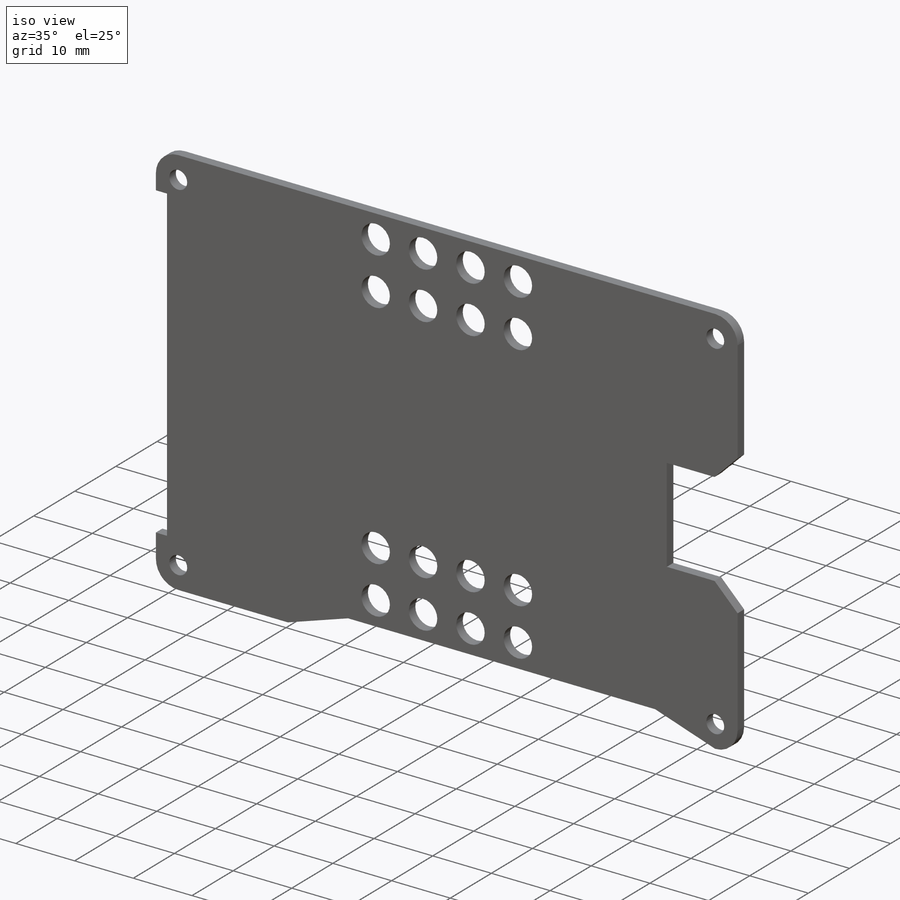
[diagram: iso view]
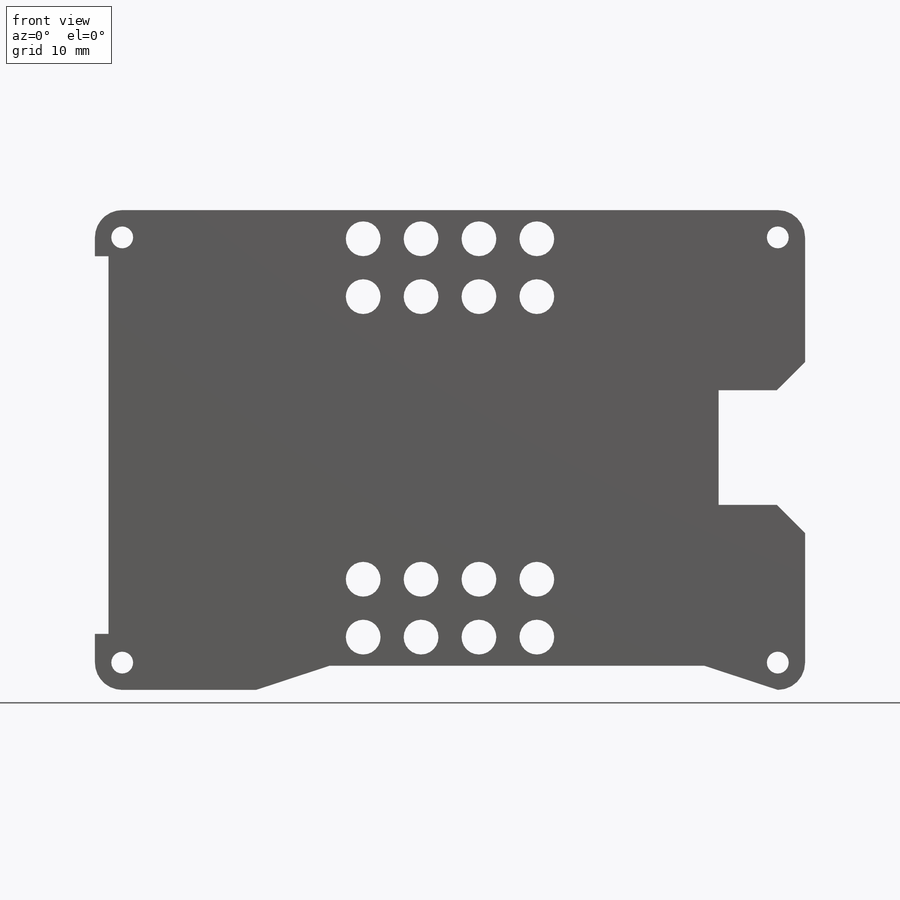
[diagram: front view]
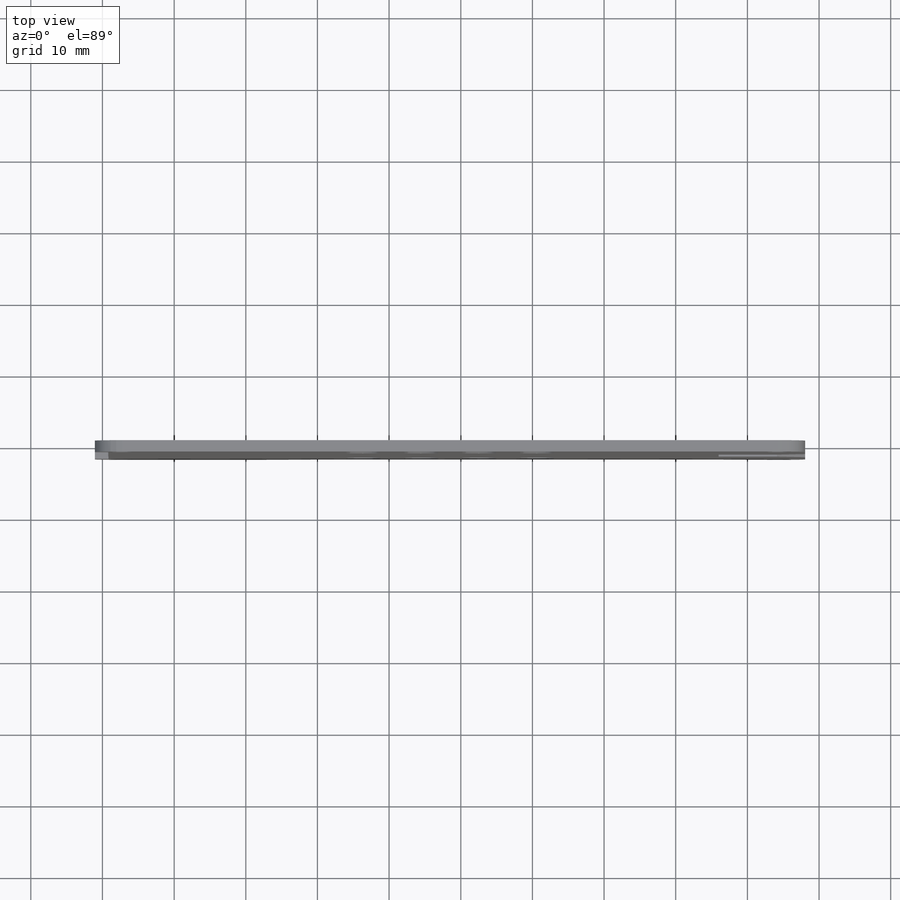
[diagram: top view]
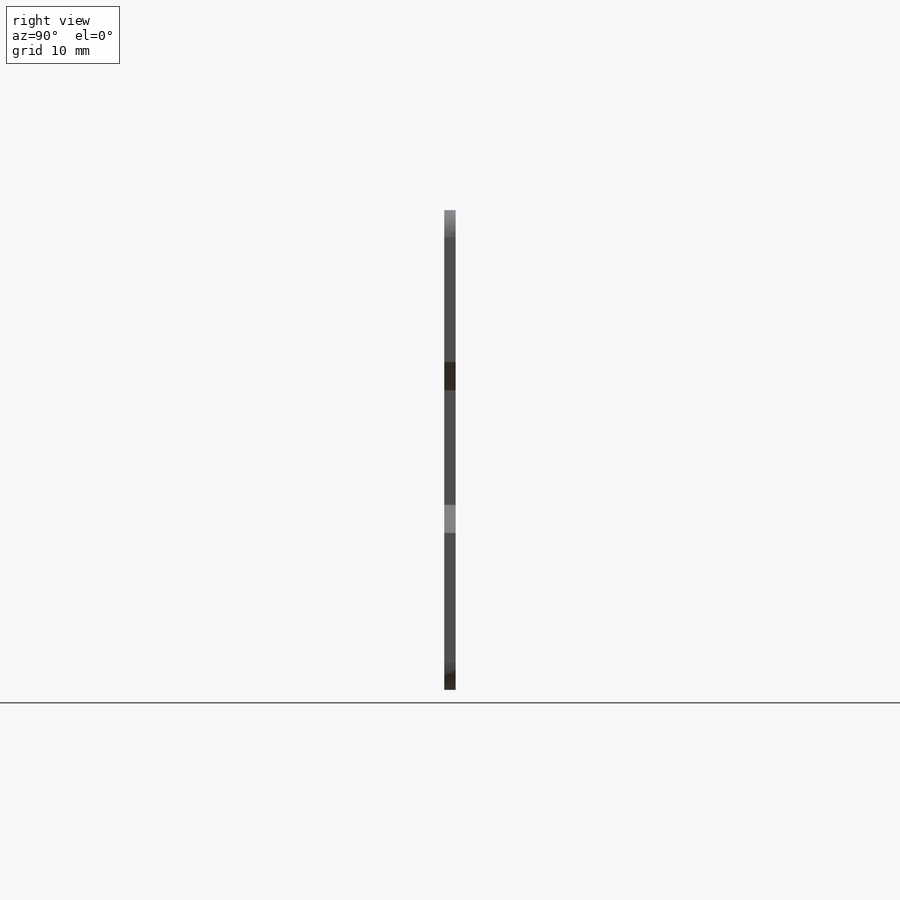
[diagram: right view]
SOLIDWORKS PART (.sldprt)
format: sldprt  version: not decoded by parser v0  size: 1,124,352 bytes
history: native  units: mm
features: sketch x8, extrude x5, cut_extrude x3, material x1 (+11 scaffold rows collapsed)
feature tree (28):
  scaffold x11  (default folders/planes/origin — collapsed)
  material  "Material <not specified>"
  sketch  "Sketch1"
  extrude  "Boss-Extrude1"  Depth=1.5875mm
  sketch  "Sketch2"  dims[D1=6.35mm D2=38.1mm D3=19.05mm]
  extrude  "Boss-Extrude2"  Depth=1.5875mm
  sketch  "Sketch3"  dims[D1=3.048mm]
  cut_extrude  "Cut-Extrude1"  [1 undecoded]
  sketch  "Sketch4"  dims[D1=~18.08275mm D2=16.002mm D3=~8.13435mm D4=~3.93065mm D5=~23.856585mm D6=~8.13435mm D7=~5.558779mm]
  sketch  "Sketch5"  dims[D1=12.065mm]
  extrude  "Boss-Extrude3"  [1 undecoded]
  cut_extrude  "Cut-Extrude2"  [1 undecoded]
  sketch  "Sketch6"  dims[c1.D1=7.0358mm c1.D2=7.0358mm c1.D6=3.556mm c1.D3=3.81mm c1.D4=41.4274mm c1.D5=3.81mm c2.D4=41.4274mm c2.D7=50.8mm c3.D4=63.5mm]
  extrude  "Boss-Extrude4"  [1 undecoded]
  sketch  "Sketch7"  dims[c1.D3=3.556mm c1.D4=7.112mm c1.D5=~6.231817mm c1.D1=75.0mm c1.D2=75.0mm c2.D5=~6.084548mm]
  extrude  "Boss-Extrude5"  Depth=1.5875mm
  sketch  "Sketch8"  dims[c1.D1=4.8514mm c1.D2=4.8514mm c1.D3=4.8514mm c1.D4=4.8514mm c1.D5=4.8514mm c1.D6=4.8514mm c1.D7=4.8514mm c1.D8=~3.744784mm c1.D9=4.8514mm c2.D2=3.2258mm c2.D3=3.2258mm c2.D4=3.2258mm c2.D5=1.5748mm c2.D6=3.2258mm c2.D7=3.2258mm c2.D8=1.5748mm c2.D9=3.2258mm]
  cut_extrude  "Cut-Extrude3"  [1 undecoded]
decode coverage: 10 of 16 modeling features carry decoded parameters
note: ~ marks probable driven/reference dimensions
note: 5 parameter values undecoded
summary: no parameter record found for 5 features
note: suppression state not decoded; provenance and decode notes live in map.json
